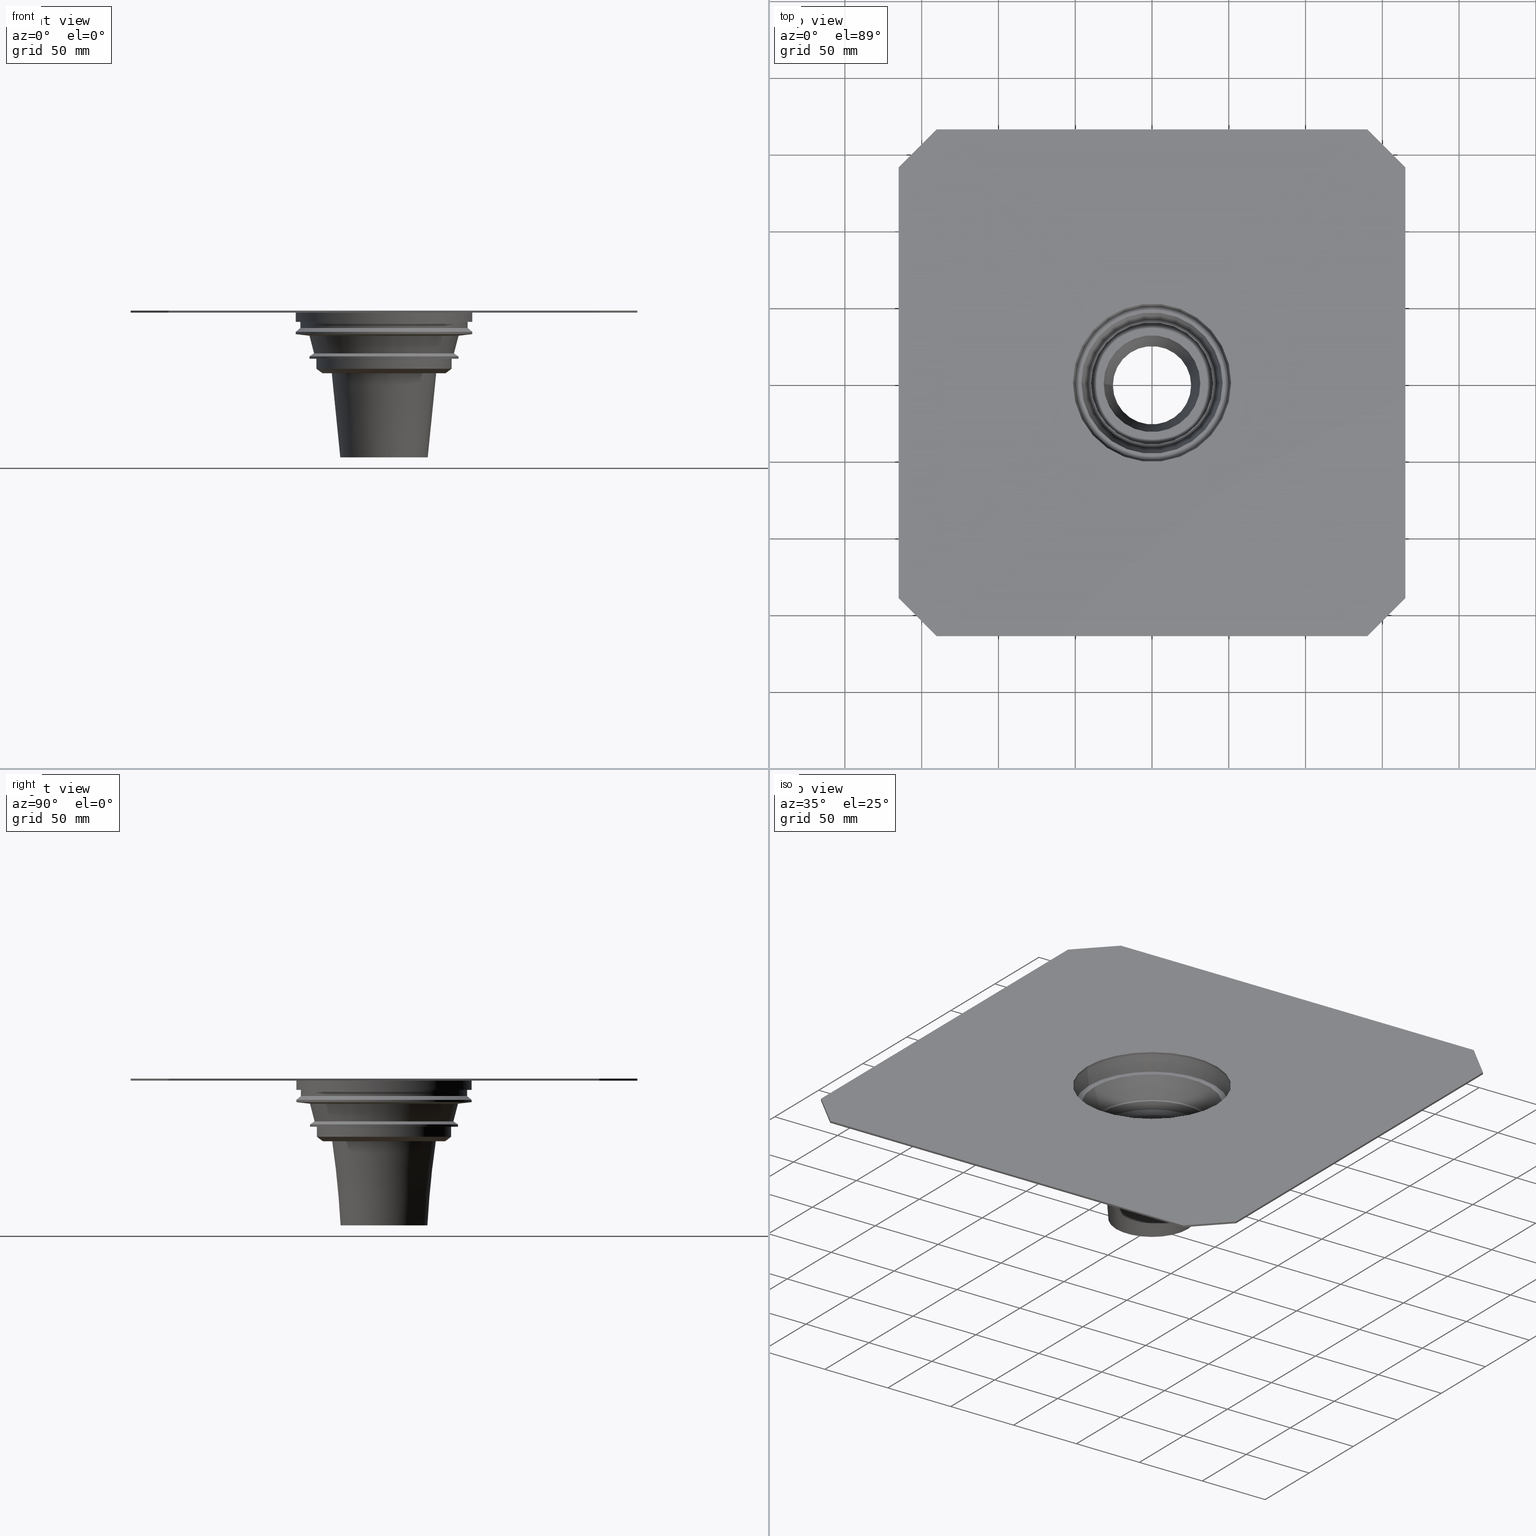
[diagram: canonical four-view strip — front | top / right | iso, engineering-drawing reading convention]
A machine part, canonical four-view strip (front | top / right | iso — engineering-drawing reading convention). The complete STEP part file that produces these views, byte-faithful:
ISO-10303-21;
HEADER;
/* Generated by software containing ST-Developer
 * from STEP Tools, Inc. (www.steptools.com) 
 */
/* OPTION: using custom renumber hook */

FILE_DESCRIPTION(
/* description */ ('STEP AP214'),
/* implementation_level */ '2;1');

FILE_NAME(
/* name */ '482076001(1)',
/* time_stamp */ '2022-12-23T08:21:51+01:00',
/* author */ ('License CC BY-ND 4.0'),
/* organization */ ('CADENAS'),
/* preprocessor_version */ 'ST-DEVELOPER v18.102',
/* originating_system */ 'PARTsolutions',
/* authorisation */ '  ');

FILE_SCHEMA (('AUTOMOTIVE_DESIGN {1 0 10303 214 3 1 1}'));
ENDSEC;

DATA;
#10=PROPERTY_DEFINITION_REPRESENTATION(#14,#12);
#11=PROPERTY_DEFINITION_REPRESENTATION(#15,#13);
#12=REPRESENTATION('',(#16),#791);
#13=REPRESENTATION('',(#17),#791);
#14=PROPERTY_DEFINITION('pmi validation property','',#796);
#15=PROPERTY_DEFINITION('pmi validation property','',#796);
#16=VALUE_REPRESENTATION_ITEM('number of annotations',COUNT_MEASURE(0.));
#17=VALUE_REPRESENTATION_ITEM('number of views',COUNT_MEASURE(0.));
#18=SHAPE_REPRESENTATION_RELATIONSHIP('','',#469,#19);
#19=ADVANCED_BREP_SHAPE_REPRESENTATION('',(#467),#791);
#20=CONICAL_SURFACE('',#487,51.5,0.124354994546762);
#21=CONICAL_SURFACE('',#491,46.,0.255179915820473);
#22=CONICAL_SURFACE('',#499,31.499,0.10039079241774);
#23=CONICAL_SURFACE('',#503,28.478,0.100386889809357);
#24=CONICAL_SURFACE('',#507,40.056,0.927295218001611);
#25=CONICAL_SURFACE('',#515,48.556,0.982793723247329);
#26=CONICAL_SURFACE('',#517,45.556,0.255182390620819);
#27=CONICAL_SURFACE('',#519,48.556,1.45945195543957);
#28=CONICAL_SURFACE('',#523,57.5,0.876058050598195);
#29=CIRCLE('',#479,51.5);
#30=CIRCLE('',#480,51.5);
#31=CIRCLE('',#483,57.5);
#32=CIRCLE('',#484,54.5);
#33=CIRCLE('',#486,57.5);
#34=CIRCLE('',#488,50.);
#35=CIRCLE('',#490,46.);
#36=CIRCLE('',#492,41.709);
#37=CIRCLE('',#494,39.709);
#38=CIRCLE('',#496,39.709);
#39=CIRCLE('',#498,31.499);
#40=CIRCLE('',#500,25.478);
#41=CIRCLE('',#502,28.478);
#42=CIRCLE('',#504,33.99);
#43=CIRCLE('',#506,40.056);
#44=CIRCLE('',#508,44.056);
#45=CIRCLE('',#510,44.056);
#46=CIRCLE('',#512,48.556);
#47=CIRCLE('',#514,48.556);
#48=CIRCLE('',#516,45.556);
#49=CIRCLE('',#518,48.556);
#50=CIRCLE('',#520,57.5);
#51=CIRCLE('',#522,57.5);
#52=CIRCLE('',#524,54.5);
#53=CYLINDRICAL_SURFACE('',#478,51.5);
#54=CYLINDRICAL_SURFACE('',#485,57.5);
#55=CYLINDRICAL_SURFACE('',#495,39.709);
#56=CYLINDRICAL_SURFACE('',#509,44.056);
#57=CYLINDRICAL_SURFACE('',#513,48.556);
#58=CYLINDRICAL_SURFACE('',#521,57.5);
#59=CYLINDRICAL_SURFACE('',#525,54.5);
#60=ORIENTED_EDGE('',*,*,#156,.F.);
#61=ORIENTED_EDGE('',*,*,#157,.T.);
#62=ORIENTED_EDGE('',*,*,#158,.T.);
#63=ORIENTED_EDGE('',*,*,#159,.F.);
#64=ORIENTED_EDGE('',*,*,#160,.F.);
#65=ORIENTED_EDGE('',*,*,#159,.T.);
#66=ORIENTED_EDGE('',*,*,#161,.T.);
#67=ORIENTED_EDGE('',*,*,#162,.F.);
#68=ORIENTED_EDGE('',*,*,#163,.F.);
#69=ORIENTED_EDGE('',*,*,#162,.T.);
#70=ORIENTED_EDGE('',*,*,#164,.T.);
#71=ORIENTED_EDGE('',*,*,#165,.F.);
#72=ORIENTED_EDGE('',*,*,#166,.F.);
#73=ORIENTED_EDGE('',*,*,#165,.T.);
#74=ORIENTED_EDGE('',*,*,#167,.T.);
#75=ORIENTED_EDGE('',*,*,#168,.F.);
#76=ORIENTED_EDGE('',*,*,#169,.F.);
#77=ORIENTED_EDGE('',*,*,#168,.T.);
#78=ORIENTED_EDGE('',*,*,#170,.T.);
#79=ORIENTED_EDGE('',*,*,#171,.F.);
#80=ORIENTED_EDGE('',*,*,#172,.F.);
#81=ORIENTED_EDGE('',*,*,#171,.T.);
#82=ORIENTED_EDGE('',*,*,#173,.T.);
#83=ORIENTED_EDGE('',*,*,#174,.F.);
#84=ORIENTED_EDGE('',*,*,#175,.F.);
#85=ORIENTED_EDGE('',*,*,#174,.T.);
#86=ORIENTED_EDGE('',*,*,#176,.T.);
#87=ORIENTED_EDGE('',*,*,#177,.F.);
#88=ORIENTED_EDGE('',*,*,#178,.T.);
#89=ORIENTED_EDGE('',*,*,#179,.T.);
#90=ORIENTED_EDGE('',*,*,#180,.F.);
#91=ORIENTED_EDGE('',*,*,#177,.T.);
#92=ORIENTED_EDGE('',*,*,#181,.T.);
#93=ORIENTED_EDGE('',*,*,#157,.F.);
#94=ORIENTED_EDGE('',*,*,#182,.T.);
#95=ORIENTED_EDGE('',*,*,#183,.F.);
#96=ORIENTED_EDGE('',*,*,#184,.T.);
#97=ORIENTED_EDGE('',*,*,#182,.F.);
#98=ORIENTED_EDGE('',*,*,#185,.T.);
#99=ORIENTED_EDGE('',*,*,#178,.F.);
#100=ORIENTED_EDGE('',*,*,#186,.T.);
#101=ORIENTED_EDGE('',*,*,#185,.F.);
#102=ORIENTED_EDGE('',*,*,#187,.T.);
#103=ORIENTED_EDGE('',*,*,#186,.F.);
#104=ORIENTED_EDGE('',*,*,#188,.T.);
#105=ORIENTED_EDGE('',*,*,#187,.F.);
#106=ORIENTED_EDGE('',*,*,#189,.T.);
#107=ORIENTED_EDGE('',*,*,#188,.F.);
#108=ORIENTED_EDGE('',*,*,#190,.T.);
#109=ORIENTED_EDGE('',*,*,#189,.F.);
#110=ORIENTED_EDGE('',*,*,#191,.T.);
#111=ORIENTED_EDGE('',*,*,#190,.F.);
#112=ORIENTED_EDGE('',*,*,#192,.T.);
#113=ORIENTED_EDGE('',*,*,#191,.F.);
#114=ORIENTED_EDGE('',*,*,#193,.T.);
#115=ORIENTED_EDGE('',*,*,#192,.F.);
#116=ORIENTED_EDGE('',*,*,#194,.T.);
#117=ORIENTED_EDGE('',*,*,#193,.F.);
#118=ORIENTED_EDGE('',*,*,#195,.T.);
#119=ORIENTED_EDGE('',*,*,#194,.F.);
#120=ORIENTED_EDGE('',*,*,#196,.T.);
#121=ORIENTED_EDGE('',*,*,#195,.F.);
#122=ORIENTED_EDGE('',*,*,#197,.T.);
#123=ORIENTED_EDGE('',*,*,#196,.F.);
#124=ORIENTED_EDGE('',*,*,#198,.T.);
#125=ORIENTED_EDGE('',*,*,#197,.F.);
#126=ORIENTED_EDGE('',*,*,#199,.T.);
#127=ORIENTED_EDGE('',*,*,#198,.F.);
#128=ORIENTED_EDGE('',*,*,#200,.T.);
#129=ORIENTED_EDGE('',*,*,#199,.F.);
#130=ORIENTED_EDGE('',*,*,#201,.T.);
#131=ORIENTED_EDGE('',*,*,#200,.F.);
#132=ORIENTED_EDGE('',*,*,#202,.T.);
#133=ORIENTED_EDGE('',*,*,#201,.F.);
#134=ORIENTED_EDGE('',*,*,#203,.T.);
#135=ORIENTED_EDGE('',*,*,#202,.F.);
#136=ORIENTED_EDGE('',*,*,#183,.T.);
#137=ORIENTED_EDGE('',*,*,#203,.F.);
#138=ORIENTED_EDGE('',*,*,#184,.F.);
#139=ORIENTED_EDGE('',*,*,#158,.F.);
#140=ORIENTED_EDGE('',*,*,#181,.F.);
#141=ORIENTED_EDGE('',*,*,#176,.F.);
#142=ORIENTED_EDGE('',*,*,#173,.F.);
#143=ORIENTED_EDGE('',*,*,#170,.F.);
#144=ORIENTED_EDGE('',*,*,#167,.F.);
#145=ORIENTED_EDGE('',*,*,#164,.F.);
#146=ORIENTED_EDGE('',*,*,#161,.F.);
#147=ORIENTED_EDGE('',*,*,#179,.F.);
#148=ORIENTED_EDGE('',*,*,#156,.T.);
#149=ORIENTED_EDGE('',*,*,#160,.T.);
#150=ORIENTED_EDGE('',*,*,#163,.T.);
#151=ORIENTED_EDGE('',*,*,#166,.T.);
#152=ORIENTED_EDGE('',*,*,#169,.T.);
#153=ORIENTED_EDGE('',*,*,#172,.T.);
#154=ORIENTED_EDGE('',*,*,#175,.T.);
#155=ORIENTED_EDGE('',*,*,#180,.T.);
#156=EDGE_CURVE('',#204,#205,#244,.T.);
#157=EDGE_CURVE('',#204,#206,#245,.T.);
#158=EDGE_CURVE('',#206,#207,#246,.T.);
#159=EDGE_CURVE('',#205,#207,#247,.T.);
#160=EDGE_CURVE('',#205,#208,#248,.T.);
#161=EDGE_CURVE('',#207,#209,#249,.T.);
#162=EDGE_CURVE('',#208,#209,#250,.T.);
#163=EDGE_CURVE('',#208,#210,#251,.T.);
#164=EDGE_CURVE('',#209,#211,#252,.T.);
#165=EDGE_CURVE('',#210,#211,#253,.T.);
#166=EDGE_CURVE('',#210,#212,#254,.T.);
#167=EDGE_CURVE('',#211,#213,#255,.T.);
#168=EDGE_CURVE('',#212,#213,#256,.T.);
#169=EDGE_CURVE('',#212,#214,#257,.T.);
#170=EDGE_CURVE('',#213,#215,#258,.T.);
#171=EDGE_CURVE('',#214,#215,#259,.T.);
#172=EDGE_CURVE('',#214,#216,#260,.T.);
#173=EDGE_CURVE('',#215,#217,#261,.T.);
#174=EDGE_CURVE('',#216,#217,#262,.T.);
#175=EDGE_CURVE('',#216,#218,#263,.T.);
#176=EDGE_CURVE('',#217,#219,#264,.T.);
#177=EDGE_CURVE('',#218,#219,#265,.T.);
#178=EDGE_CURVE('',#220,#220,#29,.T.);
#179=EDGE_CURVE('',#221,#221,#30,.T.);
#180=EDGE_CURVE('',#218,#204,#266,.T.);
#181=EDGE_CURVE('',#219,#206,#267,.T.);
#182=EDGE_CURVE('',#222,#222,#31,.T.);
#183=EDGE_CURVE('',#223,#223,#32,.T.);
#184=EDGE_CURVE('',#224,#224,#33,.F.);
#185=EDGE_CURVE('',#225,#225,#34,.T.);
#186=EDGE_CURVE('',#226,#226,#35,.T.);
#187=EDGE_CURVE('',#227,#227,#36,.T.);
#188=EDGE_CURVE('',#228,#228,#37,.T.);
#189=EDGE_CURVE('',#229,#229,#38,.T.);
#190=EDGE_CURVE('',#230,#230,#39,.T.);
#191=EDGE_CURVE('',#231,#231,#40,.T.);
#192=EDGE_CURVE('',#232,#232,#41,.T.);
#193=EDGE_CURVE('',#233,#233,#42,.T.);
#194=EDGE_CURVE('',#234,#234,#43,.T.);
#195=EDGE_CURVE('',#235,#235,#44,.T.);
#196=EDGE_CURVE('',#236,#236,#45,.T.);
#197=EDGE_CURVE('',#237,#237,#46,.T.);
#198=EDGE_CURVE('',#238,#238,#47,.T.);
#199=EDGE_CURVE('',#239,#239,#48,.T.);
#200=EDGE_CURVE('',#240,#240,#49,.T.);
#201=EDGE_CURVE('',#241,#241,#50,.T.);
#202=EDGE_CURVE('',#242,#242,#51,.T.);
#203=EDGE_CURVE('',#243,#243,#52,.T.);
#204=VERTEX_POINT('',#671);
#205=VERTEX_POINT('',#672);
#206=VERTEX_POINT('',#674);
#207=VERTEX_POINT('',#676);
#208=VERTEX_POINT('',#680);
#209=VERTEX_POINT('',#682);
#210=VERTEX_POINT('',#686);
#211=VERTEX_POINT('',#688);
#212=VERTEX_POINT('',#692);
#213=VERTEX_POINT('',#694);
#214=VERTEX_POINT('',#698);
#215=VERTEX_POINT('',#700);
#216=VERTEX_POINT('',#704);
#217=VERTEX_POINT('',#706);
#218=VERTEX_POINT('',#710);
#219=VERTEX_POINT('',#712);
#220=VERTEX_POINT('',#716);
#221=VERTEX_POINT('',#718);
#222=VERTEX_POINT('',#724);
#223=VERTEX_POINT('',#726);
#224=VERTEX_POINT('',#729);
#225=VERTEX_POINT('',#732);
#226=VERTEX_POINT('',#735);
#227=VERTEX_POINT('',#738);
#228=VERTEX_POINT('',#741);
#229=VERTEX_POINT('',#744);
#230=VERTEX_POINT('',#747);
#231=VERTEX_POINT('',#750);
#232=VERTEX_POINT('',#753);
#233=VERTEX_POINT('',#756);
#234=VERTEX_POINT('',#759);
#235=VERTEX_POINT('',#762);
#236=VERTEX_POINT('',#765);
#237=VERTEX_POINT('',#768);
#238=VERTEX_POINT('',#771);
#239=VERTEX_POINT('',#774);
#240=VERTEX_POINT('',#777);
#241=VERTEX_POINT('',#780);
#242=VERTEX_POINT('',#783);
#243=VERTEX_POINT('',#786);
#244=LINE('',#670,#268);
#245=LINE('',#673,#269);
#246=LINE('',#675,#270);
#247=LINE('',#677,#271);
#248=LINE('',#679,#272);
#249=LINE('',#681,#273);
#250=LINE('',#683,#274);
#251=LINE('',#685,#275);
#252=LINE('',#687,#276);
#253=LINE('',#689,#277);
#254=LINE('',#691,#278);
#255=LINE('',#693,#279);
#256=LINE('',#695,#280);
#257=LINE('',#697,#281);
#258=LINE('',#699,#282);
#259=LINE('',#701,#283);
#260=LINE('',#703,#284);
#261=LINE('',#705,#285);
#262=LINE('',#707,#286);
#263=LINE('',#709,#287);
#264=LINE('',#711,#288);
#265=LINE('',#713,#289);
#266=LINE('',#720,#290);
#267=LINE('',#721,#291);
#268=VECTOR('',#532,1000.);
#269=VECTOR('',#533,1000.);
#270=VECTOR('',#534,1000.);
#271=VECTOR('',#535,1000.);
#272=VECTOR('',#538,1000.);
#273=VECTOR('',#539,1000.);
#274=VECTOR('',#540,1000.);
#275=VECTOR('',#543,1000.);
#276=VECTOR('',#544,1000.);
#277=VECTOR('',#545,1000.);
#278=VECTOR('',#548,1000.);
#279=VECTOR('',#549,1000.);
#280=VECTOR('',#550,1000.);
#281=VECTOR('',#553,1000.);
#282=VECTOR('',#554,1000.);
#283=VECTOR('',#555,1000.);
#284=VECTOR('',#558,1000.);
#285=VECTOR('',#559,1000.);
#286=VECTOR('',#560,1000.);
#287=VECTOR('',#563,1000.);
#288=VECTOR('',#564,1000.);
#289=VECTOR('',#565,1000.);
#290=VECTOR('',#574,1000.);
#291=VECTOR('',#575,1000.);
#292=EDGE_LOOP('',(#60,#61,#62,#63));
#293=EDGE_LOOP('',(#64,#65,#66,#67));
#294=EDGE_LOOP('',(#68,#69,#70,#71));
#295=EDGE_LOOP('',(#72,#73,#74,#75));
#296=EDGE_LOOP('',(#76,#77,#78,#79));
#297=EDGE_LOOP('',(#80,#81,#82,#83));
#298=EDGE_LOOP('',(#84,#85,#86,#87));
#299=EDGE_LOOP('',(#88));
#300=EDGE_LOOP('',(#89));
#301=EDGE_LOOP('',(#90,#91,#92,#93));
#302=EDGE_LOOP('',(#94));
#303=EDGE_LOOP('',(#95));
#304=EDGE_LOOP('',(#96));
#305=EDGE_LOOP('',(#97));
#306=EDGE_LOOP('',(#98));
#307=EDGE_LOOP('',(#99));
#308=EDGE_LOOP('',(#100));
#309=EDGE_LOOP('',(#101));
#310=EDGE_LOOP('',(#102));
#311=EDGE_LOOP('',(#103));
#312=EDGE_LOOP('',(#104));
#313=EDGE_LOOP('',(#105));
#314=EDGE_LOOP('',(#106));
#315=EDGE_LOOP('',(#107));
#316=EDGE_LOOP('',(#108));
#317=EDGE_LOOP('',(#109));
#318=EDGE_LOOP('',(#110));
#319=EDGE_LOOP('',(#111));
#320=EDGE_LOOP('',(#112));
#321=EDGE_LOOP('',(#113));
#322=EDGE_LOOP('',(#114));
#323=EDGE_LOOP('',(#115));
#324=EDGE_LOOP('',(#116));
#325=EDGE_LOOP('',(#117));
#326=EDGE_LOOP('',(#118));
#327=EDGE_LOOP('',(#119));
#328=EDGE_LOOP('',(#120));
#329=EDGE_LOOP('',(#121));
#330=EDGE_LOOP('',(#122));
#331=EDGE_LOOP('',(#123));
#332=EDGE_LOOP('',(#124));
#333=EDGE_LOOP('',(#125));
#334=EDGE_LOOP('',(#126));
#335=EDGE_LOOP('',(#127));
#336=EDGE_LOOP('',(#128));
#337=EDGE_LOOP('',(#129));
#338=EDGE_LOOP('',(#130));
#339=EDGE_LOOP('',(#131));
#340=EDGE_LOOP('',(#132));
#341=EDGE_LOOP('',(#133));
#342=EDGE_LOOP('',(#134));
#343=EDGE_LOOP('',(#135));
#344=EDGE_LOOP('',(#136));
#345=EDGE_LOOP('',(#137));
#346=EDGE_LOOP('',(#138));
#347=EDGE_LOOP('',(#139,#140,#141,#142,#143,#144,#145,#146));
#348=EDGE_LOOP('',(#147));
#349=EDGE_LOOP('',(#148,#149,#150,#151,#152,#153,#154,#155));
#350=FACE_BOUND('',#292,.T.);
#351=FACE_BOUND('',#293,.T.);
#352=FACE_BOUND('',#294,.T.);
#353=FACE_BOUND('',#295,.T.);
#354=FACE_BOUND('',#296,.T.);
#355=FACE_BOUND('',#297,.T.);
#356=FACE_BOUND('',#298,.T.);
#357=FACE_BOUND('',#299,.T.);
#358=FACE_BOUND('',#300,.T.);
#359=FACE_BOUND('',#301,.T.);
#360=FACE_BOUND('',#302,.T.);
#361=FACE_BOUND('',#303,.T.);
#362=FACE_BOUND('',#304,.T.);
#363=FACE_BOUND('',#305,.T.);
#364=FACE_BOUND('',#306,.T.);
#365=FACE_BOUND('',#307,.T.);
#366=FACE_BOUND('',#308,.T.);
#367=FACE_BOUND('',#309,.T.);
#368=FACE_BOUND('',#310,.T.);
#369=FACE_BOUND('',#311,.T.);
#370=FACE_BOUND('',#312,.T.);
#371=FACE_BOUND('',#313,.T.);
#372=FACE_BOUND('',#314,.T.);
#373=FACE_BOUND('',#315,.T.);
#374=FACE_BOUND('',#316,.T.);
#375=FACE_BOUND('',#317,.T.);
#376=FACE_BOUND('',#318,.T.);
#377=FACE_BOUND('',#319,.T.);
#378=FACE_BOUND('',#320,.T.);
#379=FACE_BOUND('',#321,.T.);
#380=FACE_BOUND('',#322,.T.);
#381=FACE_BOUND('',#323,.T.);
#382=FACE_BOUND('',#324,.T.);
#383=FACE_BOUND('',#325,.T.);
#384=FACE_BOUND('',#326,.T.);
#385=FACE_BOUND('',#327,.T.);
#386=FACE_BOUND('',#328,.T.);
#387=FACE_BOUND('',#329,.T.);
#388=FACE_BOUND('',#330,.T.);
#389=FACE_BOUND('',#331,.T.);
#390=FACE_BOUND('',#332,.T.);
#391=FACE_BOUND('',#333,.T.);
#392=FACE_BOUND('',#334,.T.);
#393=FACE_BOUND('',#335,.T.);
#394=FACE_BOUND('',#336,.T.);
#395=FACE_BOUND('',#337,.T.);
#396=FACE_BOUND('',#338,.T.);
#397=FACE_BOUND('',#339,.T.);
#398=FACE_BOUND('',#340,.T.);
#399=FACE_BOUND('',#341,.T.);
#400=FACE_BOUND('',#342,.T.);
#401=FACE_BOUND('',#343,.T.);
#402=FACE_BOUND('',#344,.T.);
#403=FACE_BOUND('',#345,.T.);
#404=FACE_BOUND('',#346,.T.);
#405=FACE_BOUND('',#347,.T.);
#406=FACE_BOUND('',#348,.T.);
#407=FACE_BOUND('',#349,.T.);
#408=PLANE('',#471);
#409=PLANE('',#472);
#410=PLANE('',#473);
#411=PLANE('',#474);
#412=PLANE('',#475);
#413=PLANE('',#476);
#414=PLANE('',#477);
#415=PLANE('',#481);
#416=PLANE('',#482);
#417=PLANE('',#489);
#418=PLANE('',#493);
#419=PLANE('',#497);
#420=PLANE('',#501);
#421=PLANE('',#505);
#422=PLANE('',#511);
#423=PLANE('',#526);
#424=PLANE('',#527);
#425=ADVANCED_FACE('',(#350),#408,.F.);
#426=ADVANCED_FACE('',(#351),#409,.F.);
#427=ADVANCED_FACE('',(#352),#410,.F.);
#428=ADVANCED_FACE('',(#353),#411,.F.);
#429=ADVANCED_FACE('',(#354),#412,.F.);
#430=ADVANCED_FACE('',(#355),#413,.F.);
#431=ADVANCED_FACE('',(#356),#414,.F.);
#432=ADVANCED_FACE('',(#357,#358),#53,.F.);
#433=ADVANCED_FACE('',(#359),#415,.F.);
#434=ADVANCED_FACE('',(#360,#361),#416,.T.);
#435=ADVANCED_FACE('',(#362,#363),#54,.T.);
#436=ADVANCED_FACE('',(#364,#365),#20,.F.);
#437=ADVANCED_FACE('',(#366,#367),#417,.T.);
#438=ADVANCED_FACE('',(#368,#369),#21,.F.);
#439=ADVANCED_FACE('',(#370,#371),#418,.T.);
#440=ADVANCED_FACE('',(#372,#373),#55,.F.);
#441=ADVANCED_FACE('',(#374,#375),#419,.T.);
#442=ADVANCED_FACE('',(#376,#377),#22,.F.);
#443=ADVANCED_FACE('',(#378,#379),#420,.T.);
#444=ADVANCED_FACE('',(#380,#381),#23,.T.);
#445=ADVANCED_FACE('',(#382,#383),#421,.T.);
#446=ADVANCED_FACE('',(#384,#385),#24,.T.);
#447=ADVANCED_FACE('',(#386,#387),#56,.T.);
#448=ADVANCED_FACE('',(#388,#389),#422,.T.);
#449=ADVANCED_FACE('',(#390,#391),#57,.T.);
#450=ADVANCED_FACE('',(#392,#393),#25,.T.);
#451=ADVANCED_FACE('',(#394,#395),#26,.T.);
#452=ADVANCED_FACE('',(#396,#397),#27,.T.);
#453=ADVANCED_FACE('',(#398,#399),#58,.T.);
#454=ADVANCED_FACE('',(#400,#401),#28,.T.);
#455=ADVANCED_FACE('',(#402,#403),#59,.T.);
#456=ADVANCED_FACE('',(#404,#405),#423,.F.);
#457=ADVANCED_FACE('',(#406,#407),#424,.T.);
#458=CLOSED_SHELL('',(#425,#426,#427,#428,#429,#430,#431,#432,#433,#434,
#435,#436,#437,#438,#439,#440,#441,#442,#443,#444,#445,#446,#447,#448,#449,
#450,#451,#452,#453,#454,#455,#456,#457));
#459=STYLED_ITEM('',(#460),#467);
#460=PRESENTATION_STYLE_ASSIGNMENT((#461));
#461=SURFACE_STYLE_USAGE(.BOTH.,#462);
#462=SURFACE_SIDE_STYLE('',(#463));
#463=SURFACE_STYLE_FILL_AREA(#464);
#464=FILL_AREA_STYLE('',(#465));
#465=FILL_AREA_STYLE_COLOUR('',#466);
#466=COLOUR_RGB('',0.689999997615814,0.689999997615814,0.689999997615814);
#467=MANIFOLD_SOLID_BREP('482076001(1)',#458);
#468=SHAPE_DEFINITION_REPRESENTATION(#796,#469);
#469=SHAPE_REPRESENTATION('482076001(1)',(#470),#791);
#470=AXIS2_PLACEMENT_3D('',#668,#528,#529);
#471=AXIS2_PLACEMENT_3D('',#669,#530,#531);
#472=AXIS2_PLACEMENT_3D('',#678,#536,#537);
#473=AXIS2_PLACEMENT_3D('',#684,#541,#542);
#474=AXIS2_PLACEMENT_3D('',#690,#546,#547);
#475=AXIS2_PLACEMENT_3D('',#696,#551,#552);
#476=AXIS2_PLACEMENT_3D('',#702,#556,#557);
#477=AXIS2_PLACEMENT_3D('',#708,#561,#562);
#478=AXIS2_PLACEMENT_3D('',#714,#566,#567);
#479=AXIS2_PLACEMENT_3D('',#715,#568,#569);
#480=AXIS2_PLACEMENT_3D('',#717,#570,#571);
#481=AXIS2_PLACEMENT_3D('',#719,#572,#573);
#482=AXIS2_PLACEMENT_3D('',#722,#576,#577);
#483=AXIS2_PLACEMENT_3D('',#723,#578,#579);
#484=AXIS2_PLACEMENT_3D('',#725,#580,#581);
#485=AXIS2_PLACEMENT_3D('',#727,#582,#583);
#486=AXIS2_PLACEMENT_3D('',#728,#584,#585);
#487=AXIS2_PLACEMENT_3D('',#730,#586,#587);
#488=AXIS2_PLACEMENT_3D('',#731,#588,#589);
#489=AXIS2_PLACEMENT_3D('',#733,#590,#591);
#490=AXIS2_PLACEMENT_3D('',#734,#592,#593);
#491=AXIS2_PLACEMENT_3D('',#736,#594,#595);
#492=AXIS2_PLACEMENT_3D('',#737,#596,#597);
#493=AXIS2_PLACEMENT_3D('',#739,#598,#599);
#494=AXIS2_PLACEMENT_3D('',#740,#600,#601);
#495=AXIS2_PLACEMENT_3D('',#742,#602,#603);
#496=AXIS2_PLACEMENT_3D('',#743,#604,#605);
#497=AXIS2_PLACEMENT_3D('',#745,#606,#607);
#498=AXIS2_PLACEMENT_3D('',#746,#608,#609);
#499=AXIS2_PLACEMENT_3D('',#748,#610,#611);
#500=AXIS2_PLACEMENT_3D('',#749,#612,#613);
#501=AXIS2_PLACEMENT_3D('',#751,#614,#615);
#502=AXIS2_PLACEMENT_3D('',#752,#616,#617);
#503=AXIS2_PLACEMENT_3D('',#754,#618,#619);
#504=AXIS2_PLACEMENT_3D('',#755,#620,#621);
#505=AXIS2_PLACEMENT_3D('',#757,#622,#623);
#506=AXIS2_PLACEMENT_3D('',#758,#624,#625);
#507=AXIS2_PLACEMENT_3D('',#760,#626,#627);
#508=AXIS2_PLACEMENT_3D('',#761,#628,#629);
#509=AXIS2_PLACEMENT_3D('',#763,#630,#631);
#510=AXIS2_PLACEMENT_3D('',#764,#632,#633);
#511=AXIS2_PLACEMENT_3D('',#766,#634,#635);
#512=AXIS2_PLACEMENT_3D('',#767,#636,#637);
#513=AXIS2_PLACEMENT_3D('',#769,#638,#639);
#514=AXIS2_PLACEMENT_3D('',#770,#640,#641);
#515=AXIS2_PLACEMENT_3D('',#772,#642,#643);
#516=AXIS2_PLACEMENT_3D('',#773,#644,#645);
#517=AXIS2_PLACEMENT_3D('',#775,#646,#647);
#518=AXIS2_PLACEMENT_3D('',#776,#648,#649);
#519=AXIS2_PLACEMENT_3D('',#778,#650,#651);
#520=AXIS2_PLACEMENT_3D('',#779,#652,#653);
#521=AXIS2_PLACEMENT_3D('',#781,#654,#655);
#522=AXIS2_PLACEMENT_3D('',#782,#656,#657);
#523=AXIS2_PLACEMENT_3D('',#784,#658,#659);
#524=AXIS2_PLACEMENT_3D('',#785,#660,#661);
#525=AXIS2_PLACEMENT_3D('',#787,#662,#663);
#526=AXIS2_PLACEMENT_3D('',#788,#664,#665);
#527=AXIS2_PLACEMENT_3D('',#789,#666,#667);
#528=DIRECTION('',(0.,0.,1.));
#529=DIRECTION('',(1.,0.,0.));
#530=DIRECTION('',(1.,0.,0.));
#531=DIRECTION('',(0.,0.,-1.));
#532=DIRECTION('',(0.,-1.,0.));
#533=DIRECTION('',(0.,0.,-1.));
#534=DIRECTION('',(0.,-1.,0.));
#535=DIRECTION('',(0.,0.,-1.));
#536=DIRECTION('',(0.707106781186548,0.707106781186548,0.));
#537=DIRECTION('',(-0.707106781186548,0.707106781186548,0.));
#538=DIRECTION('',(0.707106781186548,-0.707106781186548,1.35290595589709E-18));
#539=DIRECTION('',(0.707106781186547,-0.707106781186547,0.));
#540=DIRECTION('',(0.,0.,-1.));
#541=DIRECTION('',(0.,1.,0.));
#542=DIRECTION('',(0.,0.,1.));
#543=DIRECTION('',(1.,0.,1.91329795144501E-18));
#544=DIRECTION('',(1.,0.,0.));
#545=DIRECTION('',(0.,0.,-1.));
#546=DIRECTION('',(-0.707106781186548,0.707106781186548,0.));
#547=DIRECTION('',(-0.707106781186548,-0.707106781186548,0.));
#548=DIRECTION('',(0.707106781186548,0.707106781186548,1.35290595589709E-18));
#549=DIRECTION('',(0.707106781186547,0.707106781186547,0.));
#550=DIRECTION('',(0.,0.,-1.));
#551=DIRECTION('',(-1.,0.,0.));
#552=DIRECTION('',(0.,0.,1.));
#553=DIRECTION('',(0.,1.,0.));
#554=DIRECTION('',(0.,1.,0.));
#555=DIRECTION('',(0.,0.,-1.));
#556=DIRECTION('',(-0.707106781186548,-0.707106781186548,0.));
#557=DIRECTION('',(0.707106781186548,-0.707106781186548,0.));
#558=DIRECTION('',(-0.707106781186548,0.707106781186548,-1.35290595589709E-18));
#559=DIRECTION('',(-0.707106781186547,0.707106781186547,0.));
#560=DIRECTION('',(0.,0.,-1.));
#561=DIRECTION('',(0.,-1.,0.));
#562=DIRECTION('',(0.,0.,-1.));
#563=DIRECTION('',(-1.,0.,-1.91329795144501E-18));
#564=DIRECTION('',(-1.,0.,0.));
#565=DIRECTION('',(0.,0.,-1.));
#566=DIRECTION('',(0.,0.,-1.));
#567=DIRECTION('',(-1.,0.,0.));
#568=DIRECTION('',(0.,0.,-1.));
#569=DIRECTION('',(-1.,0.,0.));
#570=DIRECTION('',(-1.91329795144501E-18,0.,1.));
#571=DIRECTION('',(1.,0.,1.91329795144501E-18));
#572=DIRECTION('',(0.707106781186548,-0.707106781186548,0.));
#573=DIRECTION('',(0.707106781186548,0.707106781186548,0.));
#574=DIRECTION('',(-0.707106781186548,-0.707106781186548,-1.35290595589709E-18));
#575=DIRECTION('',(-0.707106781186547,-0.707106781186547,0.));
#576=DIRECTION('',(0.,0.,-1.));
#577=DIRECTION('',(-1.,0.,0.));
#578=DIRECTION('',(0.,0.,-1.));
#579=DIRECTION('',(-1.,0.,0.));
#580=DIRECTION('',(0.,0.,-1.));
#581=DIRECTION('',(-1.,0.,0.));
#582=DIRECTION('',(0.,0.,-1.));
#583=DIRECTION('',(-1.,0.,0.));
#584=DIRECTION('',(0.,0.,1.));
#585=DIRECTION('',(1.,0.,0.));
#586=DIRECTION('',(0.,0.,1.));
#587=DIRECTION('',(1.,0.,0.));
#588=DIRECTION('',(0.,0.,-1.));
#589=DIRECTION('',(-1.,0.,0.));
#590=DIRECTION('',(0.,0.,1.));
#591=DIRECTION('',(1.,0.,0.));
#592=DIRECTION('',(0.,0.,-1.));
#593=DIRECTION('',(-1.,0.,0.));
#594=DIRECTION('',(0.,0.,1.));
#595=DIRECTION('',(1.,0.,0.));
#596=DIRECTION('',(0.,0.,-1.));
#597=DIRECTION('',(-1.,0.,0.));
#598=DIRECTION('',(0.,0.,1.));
#599=DIRECTION('',(1.,0.,0.));
#600=DIRECTION('',(0.,0.,-1.));
#601=DIRECTION('',(-1.,0.,0.));
#602=DIRECTION('',(0.,0.,-1.));
#603=DIRECTION('',(-1.,0.,0.));
#604=DIRECTION('',(0.,0.,-1.));
#605=DIRECTION('',(-1.,0.,0.));
#606=DIRECTION('',(0.,0.,1.));
#607=DIRECTION('',(1.,0.,0.));
#608=DIRECTION('',(0.,0.,-1.));
#609=DIRECTION('',(-1.,0.,0.));
#610=DIRECTION('',(0.,0.,1.));
#611=DIRECTION('',(1.,0.,0.));
#612=DIRECTION('',(0.,0.,-1.));
#613=DIRECTION('',(-1.,0.,0.));
#614=DIRECTION('',(0.,0.,-1.));
#615=DIRECTION('',(-1.,0.,0.));
#616=DIRECTION('',(0.,0.,-1.));
#617=DIRECTION('',(-1.,0.,0.));
#618=DIRECTION('',(0.,0.,1.));
#619=DIRECTION('',(1.,0.,0.));
#620=DIRECTION('',(0.,0.,-1.));
#621=DIRECTION('',(-1.,0.,0.));
#622=DIRECTION('',(0.,0.,-1.));
#623=DIRECTION('',(-1.,0.,0.));
#624=DIRECTION('',(0.,0.,-1.));
#625=DIRECTION('',(-1.,0.,0.));
#626=DIRECTION('',(0.,0.,1.));
#627=DIRECTION('',(1.,0.,0.));
#628=DIRECTION('',(0.,0.,-1.));
#629=DIRECTION('',(-1.,0.,0.));
#630=DIRECTION('',(0.,0.,-1.));
#631=DIRECTION('',(-1.,0.,0.));
#632=DIRECTION('',(0.,0.,-1.));
#633=DIRECTION('',(-1.,0.,0.));
#634=DIRECTION('',(0.,0.,-1.));
#635=DIRECTION('',(-1.,0.,0.));
#636=DIRECTION('',(0.,0.,-1.));
#637=DIRECTION('',(-1.,0.,0.));
#638=DIRECTION('',(0.,0.,-1.));
#639=DIRECTION('',(-1.,0.,0.));
#640=DIRECTION('',(0.,0.,-1.));
#641=DIRECTION('',(-1.,0.,0.));
#642=DIRECTION('',(0.,0.,-1.));
#643=DIRECTION('',(-1.,0.,0.));
#644=DIRECTION('',(0.,0.,-1.));
#645=DIRECTION('',(-1.,0.,0.));
#646=DIRECTION('',(0.,0.,1.));
#647=DIRECTION('',(1.,0.,0.));
#648=DIRECTION('',(0.,0.,-1.));
#649=DIRECTION('',(-1.,0.,0.));
#650=DIRECTION('',(0.,0.,1.));
#651=DIRECTION('',(1.,0.,0.));
#652=DIRECTION('',(0.,0.,-1.));
#653=DIRECTION('',(-1.,0.,0.));
#654=DIRECTION('',(0.,0.,-1.));
#655=DIRECTION('',(-1.,0.,0.));
#656=DIRECTION('',(0.,0.,-1.));
#657=DIRECTION('',(-1.,0.,0.));
#658=DIRECTION('',(0.,0.,-1.));
#659=DIRECTION('',(-1.,0.,0.));
#660=DIRECTION('',(0.,0.,-1.));
#661=DIRECTION('',(-1.,0.,0.));
#662=DIRECTION('',(0.,0.,-1.));
#663=DIRECTION('',(-1.,0.,0.));
#664=DIRECTION('',(0.,0.,1.));
#665=DIRECTION('',(1.,0.,0.));
#666=DIRECTION('',(-1.91329795144501E-18,0.,1.));
#667=DIRECTION('',(1.,0.,1.91329795144501E-18));
#668=CARTESIAN_POINT('',(0.,0.,0.));
#669=CARTESIAN_POINT('',(-165.,140.251262658471,5.));
#670=CARTESIAN_POINT('',(-165.,140.251262658471,1.3));
#671=CARTESIAN_POINT('',(-165.,140.251262658471,1.3));
#672=CARTESIAN_POINT('',(-165.,-140.251262658471,1.3));
#673=CARTESIAN_POINT('',(-165.,140.251262658471,5.));
#674=CARTESIAN_POINT('',(-165.,140.251262658471,0.));
#675=CARTESIAN_POINT('',(-165.,140.251262658471,0.));
#676=CARTESIAN_POINT('',(-165.,-140.251262658471,0.));
#677=CARTESIAN_POINT('',(-165.,-140.251262658471,5.));
#678=CARTESIAN_POINT('',(-165.,-140.251262658471,5.));
#679=CARTESIAN_POINT('',(-165.,-140.251262658471,1.3));
#680=CARTESIAN_POINT('',(-140.251262658471,-165.,1.3));
#681=CARTESIAN_POINT('',(-165.,-140.251262658471,0.));
#682=CARTESIAN_POINT('',(-140.251262658471,-165.,0.));
#683=CARTESIAN_POINT('',(-140.251262658471,-165.,5.));
#684=CARTESIAN_POINT('',(-140.251262658471,-165.,5.));
#685=CARTESIAN_POINT('',(-140.251262658471,-165.,1.3));
#686=CARTESIAN_POINT('',(140.251262658471,-165.,1.3));
#687=CARTESIAN_POINT('',(-140.251262658471,-165.,0.));
#688=CARTESIAN_POINT('',(140.251262658471,-165.,0.));
#689=CARTESIAN_POINT('',(140.251262658471,-165.,5.));
#690=CARTESIAN_POINT('',(140.251262658471,-165.,5.));
#691=CARTESIAN_POINT('',(140.251262658471,-165.,1.3));
#692=CARTESIAN_POINT('',(165.,-140.251262658471,1.3));
#693=CARTESIAN_POINT('',(140.251262658471,-165.,0.));
#694=CARTESIAN_POINT('',(165.,-140.251262658471,0.));
#695=CARTESIAN_POINT('',(165.,-140.251262658471,5.));
#696=CARTESIAN_POINT('',(165.,-140.251262658471,5.));
#697=CARTESIAN_POINT('',(165.,-140.251262658471,1.3));
#698=CARTESIAN_POINT('',(165.,140.251262658471,1.3));
#699=CARTESIAN_POINT('',(165.,-140.251262658471,0.));
#700=CARTESIAN_POINT('',(165.,140.251262658471,0.));
#701=CARTESIAN_POINT('',(165.,140.251262658471,5.));
#702=CARTESIAN_POINT('',(165.,140.251262658471,5.));
#703=CARTESIAN_POINT('',(165.,140.251262658471,1.3));
#704=CARTESIAN_POINT('',(140.251262658471,165.,1.3));
#705=CARTESIAN_POINT('',(165.,140.251262658471,0.));
#706=CARTESIAN_POINT('',(140.251262658471,165.,0.));
#707=CARTESIAN_POINT('',(140.251262658471,165.,5.));
#708=CARTESIAN_POINT('',(140.251262658471,165.,5.));
#709=CARTESIAN_POINT('',(140.251262658471,165.,1.3));
#710=CARTESIAN_POINT('',(-140.251262658471,165.,1.3));
#711=CARTESIAN_POINT('',(140.251262658471,165.,0.));
#712=CARTESIAN_POINT('',(-140.251262658471,165.,0.));
#713=CARTESIAN_POINT('',(-140.251262658471,165.,5.));
#714=CARTESIAN_POINT('',(0.,0.,5.));
#715=CARTESIAN_POINT('',(0.,0.,0.));
#716=CARTESIAN_POINT('',(-51.5,0.,0.));
#717=CARTESIAN_POINT('',(0.,0.,1.3));
#718=CARTESIAN_POINT('',(51.5,0.,1.3));
#719=CARTESIAN_POINT('',(-140.251262658471,165.,5.));
#720=CARTESIAN_POINT('',(-140.251262658471,165.,1.3));
#721=CARTESIAN_POINT('',(-140.251262658471,165.,0.));
#722=CARTESIAN_POINT('',(-54.5,0.,-6.));
#723=CARTESIAN_POINT('',(0.,0.,-6.));
#724=CARTESIAN_POINT('',(-57.5,0.,-6.));
#725=CARTESIAN_POINT('',(0.,0.,-6.));
#726=CARTESIAN_POINT('',(-54.5,0.,-6.));
#727=CARTESIAN_POINT('',(0.,0.,-50.));
#728=CARTESIAN_POINT('',(0.,0.,0.));
#729=CARTESIAN_POINT('',(57.5,0.,0.));
#730=CARTESIAN_POINT('',(0.,0.,0.));
#731=CARTESIAN_POINT('',(0.,0.,-12.));
#732=CARTESIAN_POINT('',(-50.,0.,-12.));
#733=CARTESIAN_POINT('',(-50.,0.,-12.));
#734=CARTESIAN_POINT('',(0.,0.,-12.));
#735=CARTESIAN_POINT('',(-46.,0.,-12.));
#736=CARTESIAN_POINT('',(0.,0.,-12.));
#737=CARTESIAN_POINT('',(0.,0.,-28.449));
#738=CARTESIAN_POINT('',(-41.709,0.,-28.449));
#739=CARTESIAN_POINT('',(-41.709,0.,-28.449));
#740=CARTESIAN_POINT('',(0.,0.,-28.449));
#741=CARTESIAN_POINT('',(-39.709,0.,-28.449));
#742=CARTESIAN_POINT('',(0.,0.,-50.));
#743=CARTESIAN_POINT('',(0.,0.,-34.449));
#744=CARTESIAN_POINT('',(-39.709,0.,-34.449));
#745=CARTESIAN_POINT('',(-39.709,0.,-34.449));
#746=CARTESIAN_POINT('',(0.,0.,-34.449));
#747=CARTESIAN_POINT('',(-31.499,0.,-34.449));
#748=CARTESIAN_POINT('',(0.,0.,-34.449));
#749=CARTESIAN_POINT('',(0.,0.,-94.223));
#750=CARTESIAN_POINT('',(-25.478,0.,-94.223));
#751=CARTESIAN_POINT('',(-25.478,0.,-94.223));
#752=CARTESIAN_POINT('',(0.,0.,-94.223));
#753=CARTESIAN_POINT('',(-28.478,0.,-94.223));
#754=CARTESIAN_POINT('',(0.,0.,-94.223));
#755=CARTESIAN_POINT('',(0.,0.,-39.5));
#756=CARTESIAN_POINT('',(-33.99,0.,-39.5));
#757=CARTESIAN_POINT('',(-33.99,0.,-39.5));
#758=CARTESIAN_POINT('',(0.,0.,-39.5));
#759=CARTESIAN_POINT('',(-40.056,0.,-39.5));
#760=CARTESIAN_POINT('',(0.,0.,-39.5));
#761=CARTESIAN_POINT('',(0.,0.,-36.5));
#762=CARTESIAN_POINT('',(-44.056,0.,-36.5));
#763=CARTESIAN_POINT('',(0.,0.,-50.));
#764=CARTESIAN_POINT('',(0.,0.,-30.));
#765=CARTESIAN_POINT('',(-44.056,0.,-30.));
#766=CARTESIAN_POINT('',(-44.056,0.,-30.));
#767=CARTESIAN_POINT('',(0.,0.,-30.));
#768=CARTESIAN_POINT('',(-48.556,0.,-30.));
#769=CARTESIAN_POINT('',(0.,0.,-50.));
#770=CARTESIAN_POINT('',(0.,0.,-28.5));
#771=CARTESIAN_POINT('',(-48.556,0.,-28.5));
#772=CARTESIAN_POINT('',(0.,0.,-28.5));
#773=CARTESIAN_POINT('',(0.,0.,-26.5));
#774=CARTESIAN_POINT('',(-45.556,0.,-26.5));
#775=CARTESIAN_POINT('',(0.,0.,-26.5));
#776=CARTESIAN_POINT('',(0.,0.,-15.));
#777=CARTESIAN_POINT('',(-48.556,0.,-15.));
#778=CARTESIAN_POINT('',(0.,0.,-15.));
#779=CARTESIAN_POINT('',(0.,0.,-14.));
#780=CARTESIAN_POINT('',(-57.5,0.,-14.));
#781=CARTESIAN_POINT('',(0.,0.,-50.));
#782=CARTESIAN_POINT('',(0.,0.,-12.5));
#783=CARTESIAN_POINT('',(-57.5,0.,-12.5));
#784=CARTESIAN_POINT('',(0.,0.,-12.5));
#785=CARTESIAN_POINT('',(0.,0.,-10.));
#786=CARTESIAN_POINT('',(-54.5,0.,-10.));
#787=CARTESIAN_POINT('',(0.,0.,-50.));
#788=CARTESIAN_POINT('',(0.,0.,0.));
#789=CARTESIAN_POINT('',(170.,170.,1.3));
#790=MECHANICAL_DESIGN_GEOMETRIC_PRESENTATION_REPRESENTATION('',(#459),
#791);
#791=(
GEOMETRIC_REPRESENTATION_CONTEXT(3)
GLOBAL_UNCERTAINTY_ASSIGNED_CONTEXT((#792))
GLOBAL_UNIT_ASSIGNED_CONTEXT((#795,#794,#793))
REPRESENTATION_CONTEXT('482076001(1)','TOP_LEVEL_ASSEMBLY_PART')
);
#792=UNCERTAINTY_MEASURE_WITH_UNIT(LENGTH_MEASURE(0.005),#795,
'DISTANCE_ACCURACY_VALUE','Maximum Tolerance applied to model');
#793=(
NAMED_UNIT(*)
SI_UNIT($,.STERADIAN.)
SOLID_ANGLE_UNIT()
);
#794=(
NAMED_UNIT(*)
PLANE_ANGLE_UNIT()
SI_UNIT($,.RADIAN.)
);
#795=(
LENGTH_UNIT()
NAMED_UNIT(*)
SI_UNIT(.MILLI.,.METRE.)
);
#796=PRODUCT_DEFINITION_SHAPE('','',#797);
#797=PRODUCT_DEFINITION('','',#799,#798);
#798=PRODUCT_DEFINITION_CONTEXT('',#805,'design');
#799=PRODUCT_DEFINITION_FORMATION_WITH_SPECIFIED_SOURCE('','',#801,
 .NOT_KNOWN.);
#800=PRODUCT_RELATED_PRODUCT_CATEGORY('','',(#801));
#801=PRODUCT('482076001(1)','482076001(1)','482076001(1)',(#803));
#802=PRODUCT_CATEGORY('','');
#803=PRODUCT_CONTEXT('',#805,'mechanical');
#804=APPLICATION_PROTOCOL_DEFINITION('international standard',
'automotive_design',2010,#805);
#805=APPLICATION_CONTEXT(
'core data for automotive mechanical design processes');
ENDSEC;
END-ISO-10303-21;
